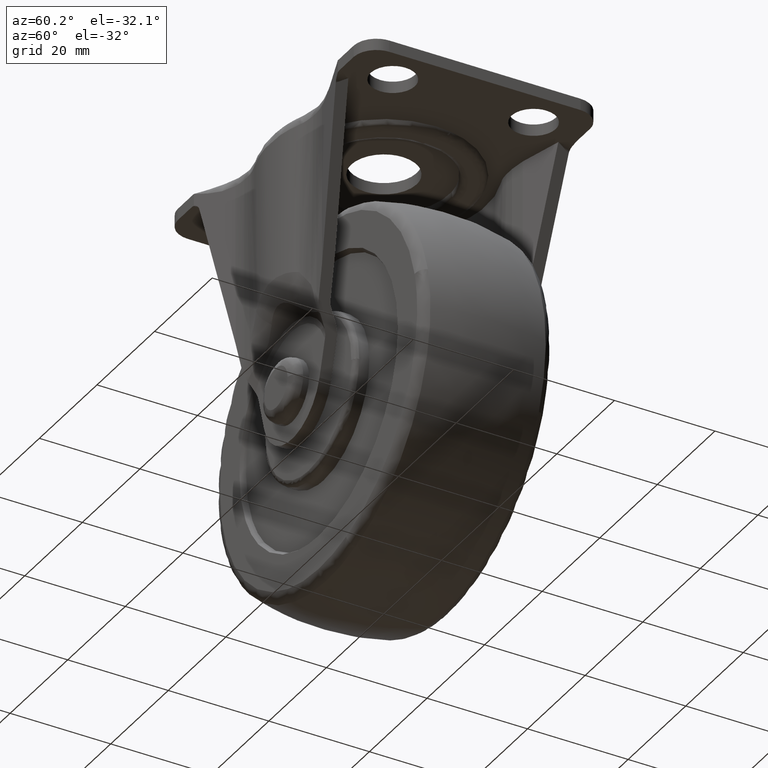
[diagram: clean part render]
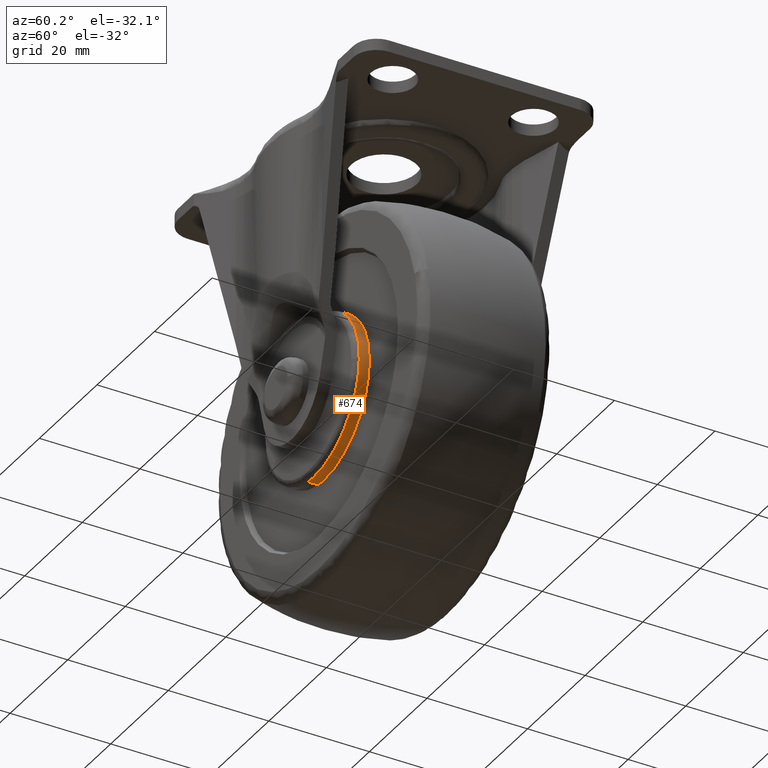
[diagram: same view with one face highlighted and labeled with its STEP entity id]
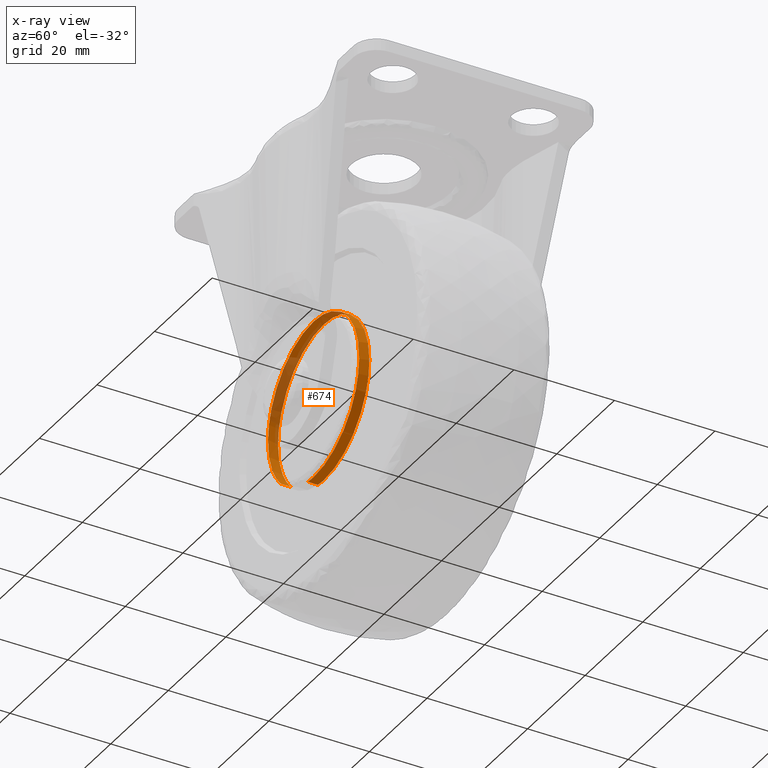
[diagram: x-ray of the same camera — body ghosted, the highlighted face saturated]
A machine part, auxiliary view. The second image highlights one B-rep face of the part: STEP entity #674.
The next image is the same camera in x-ray: the body ghosted, the highlighted face saturated — about 26% of this face is hidden behind the body in this view.
In plain terms, the highlighted face is a freeform B-spline surface patch.
Its self-contained STEP definition (entity closure, byte-faithful):
#487=CARTESIAN_POINT('',(-1.984105715283009,-11.950000017438946,-15.725322289561667));
#488=CARTESIAN_POINT('',(5.464531146720547,-11.950000017438947,-16.665136602860606));
#489=CARTESIAN_POINT('',(10.910418648036851,-11.950000017438949,-11.497182329796010));
#490=CARTESIAN_POINT('',(22.407600977832860,-11.950000017438947,-0.586763681759164));
#491=CARTESIAN_POINT('',(11.497182329796010,-11.950000017438949,10.910418648036851));
#492=CARTESIAN_POINT('',(0.586763681759166,-11.950000017438947,22.407600977832860));
#493=CARTESIAN_POINT('',(-10.910418648036851,-11.950000017438949,11.497182329796020));
#494=CARTESIAN_POINT('',(-22.407600977832860,-11.950000017438947,0.586763681759168));
#495=CARTESIAN_POINT('',(-11.497182329796010,-11.950000017438949,-10.910418648036851));
#496=CARTESIAN_POINT('',(-1.984105715283009,-14.051249284567133,-15.725322289561667));
#497=CARTESIAN_POINT('',(5.464531146720547,-14.051249284567140,-16.665136602860606));
#498=CARTESIAN_POINT('',(10.910418648036851,-14.051249284567140,-11.497182329796010));
#499=CARTESIAN_POINT('',(22.407600977832860,-14.051249284567135,-0.586763681759164));
#500=CARTESIAN_POINT('',(11.497182329796010,-14.051249284567140,10.910418648036851));
#501=CARTESIAN_POINT('',(0.586763681759166,-14.051249284567135,22.407600977832860));
#502=CARTESIAN_POINT('',(-10.910418648036851,-14.051249284567140,11.497182329796020));
#503=CARTESIAN_POINT('',(-22.407600977832860,-14.051249284567135,0.586763681759168));
#504=CARTESIAN_POINT('',(-11.497182329796010,-14.051249284567140,-10.910418648036851));
#512=(BOUNDED_SURFACE()B_SPLINE_SURFACE(2,1,((#487,#496),(#488,#497),(#489,#498),(#490,#499),(#491,#500),(#492,#501),(#493,#502),(#494,#503),(#495,#504)),.UNSPECIFIED.,.F.,.F.,.U.)B_SPLINE_SURFACE_WITH_KNOTS((3,2,2,2,3),(2,2),(0.0,14.706236462817600,40.967373003563317,67.228509544309048,93.489646085054758),(0.0,2.101249267128188),.UNSPECIFIED.)GEOMETRIC_REPRESENTATION_ITEM()RATIONAL_B_SPLINE_SURFACE(((0.855662221768731,0.855662221768731),(0.835979797464467,0.835979797464467),(1.0,1.0),(0.707106781186548,0.707106781186548),(1.0,1.0),(0.707106781186548,0.707106781186548),(1.0,1.0),(0.707106781186548,0.707106781186548),(1.0,1.0)))REPRESENTATION_ITEM('')SURFACE());
#513=CARTESIAN_POINT('',(-1.984105815657364,-12.000000000000011,-15.725322305418061));
#514=VERTEX_POINT('',#513);
#515=CARTESIAN_POINT('',(0.0,-12.0,-15.849997999999999));
#516=VERTEX_POINT('',#515);
#517=CARTESIAN_POINT('',(-1.984105815657364,-12.000000000000011,-15.725322305418061));
#518=CARTESIAN_POINT('',(-1.326214247187355,-12.000000000000011,-15.808341750629390));
#519=CARTESIAN_POINT('',(-0.663109379347845,-12.0,-15.850013601657279));
#520=CARTESIAN_POINT('',(0.0,-12.0,-15.849997999999999));
#521=B_SPLINE_CURVE_WITH_KNOTS('',3,(#517,#518,#519,#520),.UNSPECIFIED.,.F.,.U.,(4,4),(7.272303E-010,1.989329648419752),.UNSPECIFIED.);
#522=EDGE_CURVE('',#514,#516,#521,.T.);
#523=ORIENTED_EDGE('',*,*,#522,.T.);
#524=CARTESIAN_POINT('',(15.849997999999930,-12.0,0.000001465793642));
#525=VERTEX_POINT('',#524);
#526=CARTESIAN_POINT('',(0.0,-12.0,-15.849997999999999));
#527=CARTESIAN_POINT('',(1.426461432604344,-11.999999999999959,-15.850538316784069));
#528=CARTESIAN_POINT('',(3.500932572166663,-12.000000000000080,-15.567945004928321));
#529=CARTESIAN_POINT('',(6.019340744264031,-11.999999999999959,-14.701395573085581));
#530=CARTESIAN_POINT('',(8.009395368322428,-12.000000000000011,-13.745284830118200));
#531=CARTESIAN_POINT('',(10.058189884144760,-12.000000000000020,-12.358127347131660));
#532=CARTESIAN_POINT('',(11.874612234713810,-11.999999999999989,-10.585620349137050));
#533=CARTESIAN_POINT('',(13.251222477362180,-12.000000000000011,-8.776234430072744));
#534=CARTESIAN_POINT('',(14.416886309820120,-11.999999999999989,-6.747869433438803));
#535=CARTESIAN_POINT('',(15.523864005684160,-12.000000000000011,-3.825113433784124));
#536=CARTESIAN_POINT('',(15.850493601524899,-12.0,-1.426443438207365));
#537=CARTESIAN_POINT('',(15.849997999999930,-12.0,0.000001465793642));
#538=B_SPLINE_CURVE_WITH_KNOTS('',3,(#526,#527,#528,#529,#530,#531,#532,#533,#534,#535,#536,#537),.UNSPECIFIED.,.F.,.U.,(4,1,1,1,1,1,1,1,1,4),(0.000000041979693,4.279198799130732,6.224319044318424,7.974923875567782,10.892603042152240,13.615655365844891,15.560780410035470,17.700396983301768,20.618073616757069,24.897275683109321),.UNSPECIFIED.);
#539=EDGE_CURVE('',#516,#525,#538,.T.);
#540=ORIENTED_EDGE('',*,*,#539,.T.);
#541=CARTESIAN_POINT('',(0.0,-12.0,15.849997999999999));
#542=VERTEX_POINT('',#541);
#543=CARTESIAN_POINT('',(15.849997999999930,-12.0,0.000001465793642));
#544=CARTESIAN_POINT('',(15.850301921562510,-11.999999999999989,1.296734564732039));
#545=CARTESIAN_POINT('',(15.561963997480790,-12.000000000000011,3.630729560814940));
#546=CARTESIAN_POINT('',(14.574192734702550,-11.999999999999989,6.391012637649445));
#547=CARTESIAN_POINT('',(13.397605458487570,-12.0,8.560015198626347));
#548=CARTESIAN_POINT('',(12.168048322812270,-11.999999999999989,10.239353460587170));
#549=CARTESIAN_POINT('',(10.489498507800910,-12.0,11.959557511672010));
#550=CARTESIAN_POINT('',(8.262698095362419,-12.000000000000069,13.654194116685080));
#551=CARTESIAN_POINT('',(5.673805845534244,-11.999999999999821,14.898065429050250));
#552=CARTESIAN_POINT('',(2.787892614726281,-12.000000000000330,15.677468909148370));
#553=CARTESIAN_POINT('',(1.037384388674452,-11.999999999999741,15.850127881965300));
#554=CARTESIAN_POINT('',(0.0,-12.0,15.849997999999999));
#555=B_SPLINE_CURVE_WITH_KNOTS('',3,(#543,#544,#545,#546,#547,#548,#549,#550,#551,#552,#553,#554),.UNSPECIFIED.,.F.,.U.,(4,1,1,1,1,1,1,1,1,4),(0.000000042498129,3.890178484874348,7.002366756498855,8.752949817820275,11.281617093805931,13.226644228601410,15.949814399063140,19.645515253740172,21.785131685158770,24.897274030807850),.UNSPECIFIED.);
#556=EDGE_CURVE('',#525,#542,#555,.T.);
#557=ORIENTED_EDGE('',*,*,#556,.T.);
#558=CARTESIAN_POINT('',(-15.849997999999930,-12.0,-0.000001465793372));
#559=VERTEX_POINT('',#558);
#560=CARTESIAN_POINT('',(0.0,-12.0,15.849997999999999));
#561=CARTESIAN_POINT('',(-1.037385003971146,-11.999999999999980,15.850109697868350));
#562=CARTESIAN_POINT('',(-3.112097904054919,-12.000000000000020,15.645600104357779));
#563=CARTESIAN_POINT('',(-6.229399538564491,-12.000000000000020,14.700193508128320));
#564=CARTESIAN_POINT('',(-8.858129110656730,-11.999999999999931,13.253178717180800));
#565=CARTESIAN_POINT('',(-11.270436001234030,-12.000000000000179,11.273500153207481));
#566=CARTESIAN_POINT('',(-13.076402316673320,-11.999999999999689,9.127278617753468));
#567=CARTESIAN_POINT('',(-14.312966125387771,-12.000000000000400,6.912386358400955));
#568=CARTESIAN_POINT('',(-15.084294979107771,-11.999999999999471,4.983631097791220));
#569=CARTESIAN_POINT('',(-15.677487488589531,-12.000000000000499,2.787903645543582));
#570=CARTESIAN_POINT('',(-15.850143569760510,-11.999999999999730,1.037383286247458));
#571=CARTESIAN_POINT('',(-15.849997999999930,-12.0,-0.000001465793372));
#572=B_SPLINE_CURVE_WITH_KNOTS('',3,(#560,#561,#562,#563,#564,#565,#566,#567,#568,#569,#570,#571),.UNSPECIFIED.,.F.,.U.,(4,1,1,1,1,1,1,1,1,4),(0.000000041977454,3.112156138962007,6.224319044317216,9.725531527627103,12.059634547223689,15.560780410035189,18.089422612575930,19.645516557709811,21.785133131381151,24.897275683109171),.UNSPECIFIED.);
#573=EDGE_CURVE('',#542,#559,#572,.T.);
#574=ORIENTED_EDGE('',*,*,#573,.T.);
#575=CARTESIAN_POINT('',(-11.497182531193239,-12.000000000000011,-10.910418967432911));
#576=VERTEX_POINT('',#575);
#577=CARTESIAN_POINT('',(-15.849997999999930,-12.0,-0.000001465793372));
#578=CARTESIAN_POINT('',(-15.850526918903860,-12.000000000000041,-1.441603185139788));
#579=CARTESIAN_POINT('',(-15.548550716292580,-11.999999999999980,-3.634893695818513));
#580=CARTESIAN_POINT('',(-14.467680235121280,-12.000000000000020,-6.651701222856391));
#581=CARTESIAN_POINT('',(-13.207350973109110,-12.000000000000020,-8.904334016816669));
#582=CARTESIAN_POINT('',(-12.058060746208760,-12.000000000000020,-10.319428381911591));
#583=CARTESIAN_POINT('',(-11.497182531193239,-12.000000000000011,-10.910418967432911));
#584=B_SPLINE_CURVE_WITH_KNOTS('',3,(#577,#578,#579,#580,#581,#582,#583),.UNSPECIFIED.,.F.,.U.,(4,1,1,1,4),(0.000000019692692,4.324610373985438,6.580896114241712,9.589340449232804,12.033676664035900),.UNSPECIFIED.);
#585=EDGE_CURVE('',#559,#576,#584,.T.);
#586=ORIENTED_EDGE('',*,*,#585,.T.);
#587=CARTESIAN_POINT('',(-11.497182263614430,-13.999999301877150,-10.910418717777500));
#588=VERTEX_POINT('',#587);
#589=CARTESIAN_POINT('',(-11.497182531193239,-12.000000000000011,-10.910418967432911));
#590=CARTESIAN_POINT('',(-11.497182263614430,-13.999999301877150,-10.910418717777500));
#591=QUASI_UNIFORM_CURVE('',1,(#589,#590),.UNSPECIFIED.,.F.,.U.);
#592=EDGE_CURVE('',#576,#588,#591,.T.);
#593=ORIENTED_EDGE('',*,*,#592,.T.);
#594=CARTESIAN_POINT('',(-15.844992400769810,-13.999999302442060,0.398311962590949));
#595=VERTEX_POINT('',#594);
#596=CARTESIAN_POINT('',(-15.844992400769810,-13.999999302442060,0.398311962590949));
#597=CARTESIAN_POINT('',(-15.866193338027751,-13.999999302391471,-0.443169317403675));
#598=CARTESIAN_POINT('',(-15.770543278609990,-13.999999302289689,-2.194362029019258));
#599=CARTESIAN_POINT('',(-15.160875643646319,-13.999999302142550,-4.921546597494865));
#600=CARTESIAN_POINT('',(-13.857147432268640,-13.999999301993380,-7.972863854143797));
#601=CARTESIAN_POINT('',(-12.433457195380170,-13.999999301912631,-9.924317341504958));
#602=CARTESIAN_POINT('',(-11.497182263614430,-13.999999301877150,-10.910418717777500));
#603=B_SPLINE_CURVE_WITH_KNOTS('',3,(#596,#597,#598,#599,#600,#601,#602),.UNSPECIFIED.,.F.,.U.,(4,1,1,1,4),(0.000000016546148,2.525254272361481,5.244785785201518,8.352767322923775,12.432039133506560),.UNSPECIFIED.);
#604=EDGE_CURVE('',#595,#588,#603,.T.);
#605=ORIENTED_EDGE('',*,*,#604,.F.);
#606=CARTESIAN_POINT('',(0.0,-13.999999301868399,15.849997999999751));
#607=VERTEX_POINT('',#606);
#608=CARTESIAN_POINT('',(0.0,-13.999999301868399,15.849997999999751));
#609=CARTESIAN_POINT('',(-1.212202853564742,-13.999999301868391,15.850279831328780));
#610=CARTESIAN_POINT('',(-2.934637074063771,-13.999999301875789,15.651377372723431));
#611=CARTESIAN_POINT('',(-5.330211822454101,-13.999999301901140,14.968286776097489));
#612=CARTESIAN_POINT('',(-7.688628769394002,-13.999999301937940,13.975788728336070));
#613=CARTESIAN_POINT('',(-10.142122624458469,-13.999999301999271,12.326835772370970));
#614=CARTESIAN_POINT('',(-12.289860634253250,-13.999999302080671,10.128498820976530));
#615=CARTESIAN_POINT('',(-13.891653879252400,-13.999999302167030,7.811000833028585));
#616=CARTESIAN_POINT('',(-14.892870623011831,-13.999999302249449,5.590603460065354));
#617=CARTESIAN_POINT('',(-15.613327958707270,-13.999999302342340,3.072818333412415));
#618=CARTESIAN_POINT('',(-15.817896847648131,-13.999999302402291,1.482563313115707));
#619=CARTESIAN_POINT('',(-15.844992400769810,-13.999999302442060,0.398311962590949));
#620=B_SPLINE_CURVE_WITH_KNOTS('',3,(#608,#609,#610,#611,#612,#613,#614,#615,#616,#617,#618,#619),.UNSPECIFIED.,.F.,.U.,(4,1,1,1,1,1,1,1,1,4),(0.000000051680196,3.636530705866061,5.167733537046676,7.464522451805035,11.292512420964769,13.971990561242629,16.651589522712641,19.713975870925129,21.245171719881650,24.498913579753282),.UNSPECIFIED.);
#621=EDGE_CURVE('',#607,#595,#620,.T.);
#622=ORIENTED_EDGE('',*,*,#621,.F.);
#623=CARTESIAN_POINT('',(15.844992400769810,-13.999999302442060,-0.398311962590946));
#624=VERTEX_POINT('',#623);
#625=CARTESIAN_POINT('',(15.844992400769810,-13.999999302442060,-0.398311962590946));
#626=CARTESIAN_POINT('',(15.864877748551530,-13.999999302394560,0.391904842030030));
#627=CARTESIAN_POINT('',(15.776352881990810,-13.999999302290780,2.173289714634836));
#628=CARTESIAN_POINT('',(15.204004131985140,-13.999999302151259,4.757127056561614));
#629=CARTESIAN_POINT('',(14.167370329323830,-13.999999302028030,7.260754516144180));
#630=CARTESIAN_POINT('',(12.983940471302420,-13.999999301943770,9.170937813434923));
#631=CARTESIAN_POINT('',(11.564210445351190,-13.999999301875730,10.906768907284400));
#632=CARTESIAN_POINT('',(9.878597938456005,-13.999999301823109,12.490838094597390));
#633=CARTESIAN_POINT('',(7.399484398700672,-13.999999301787110,14.136613563728300));
#634=CARTESIAN_POINT('',(4.083966064971953,-13.999999301788639,15.486038268260289));
#635=CARTESIAN_POINT('',(1.449256558305331,-13.999999301832450,15.850510749514539));
#636=CARTESIAN_POINT('',(0.0,-13.999999301868399,15.849997999999751));
#637=B_SPLINE_CURVE_WITH_KNOTS('',3,(#625,#626,#627,#628,#629,#630,#631,#632,#633,#634,#635,#636),.UNSPECIFIED.,.F.,.U.,(4,1,1,1,1,1,1,1,1,4),(0.000000031264769,2.371424695094781,5.335788510950280,7.904891304950137,10.474013245619441,12.054965668100470,14.623998807080930,17.390747646743819,20.947955610728929,25.295636374068192),.UNSPECIFIED.);
#638=EDGE_CURVE('',#624,#607,#637,.T.);
#639=ORIENTED_EDGE('',*,*,#638,.F.);
#640=CARTESIAN_POINT('',(0.0,-13.999999301868399,-15.849997999999751));
#641=VERTEX_POINT('',#640);
#642=CARTESIAN_POINT('',(0.0,-13.999999301868399,-15.849997999999751));
#643=CARTESIAN_POINT('',(0.956981116389593,-13.999999301868421,-15.850091895174470));
#644=CARTESIAN_POINT('',(2.679516463404818,-13.999999301874180,-15.693505964710440));
#645=CARTESIAN_POINT('',(5.094434927793335,-13.999999301897491,-15.067654546437410));
#646=CARTESIAN_POINT('',(7.039928995043609,-13.999999301927810,-14.248530409030010));
#647=CARTESIAN_POINT('',(9.030024107340418,-13.999999301970790,-13.095138377488240));
#648=CARTESIAN_POINT('',(10.736963199145270,-13.999999302020811,-11.742294162498650));
#649=CARTESIAN_POINT('',(12.348305454540069,-13.999999302085170,-10.011348524158681));
#650=CARTESIAN_POINT('',(13.754484473060209,-13.999999302158740,-8.028634757706085));
#651=CARTESIAN_POINT('',(14.809017341827991,-13.999999302240241,-5.833060854690353));
#652=CARTESIAN_POINT('',(15.596963917602579,-13.999999302338020,-3.200044110100584));
#653=CARTESIAN_POINT('',(15.817899818906090,-13.999999302402040,-1.482562280922845));
#654=CARTESIAN_POINT('',(15.844992400769810,-13.999999302442060,-0.398311962590946));
#655=B_SPLINE_CURVE_WITH_KNOTS('',3,(#642,#643,#644,#645,#646,#647,#648,#649,#650,#651,#652,#653,#654),.UNSPECIFIED.,.F.,.U.,(4,1,1,1,1,1,1,1,1,1,4),(0.000000051680150,2.870944762184468,5.167733537046523,7.464522451804829,9.187100625382758,12.058071410470260,13.971990561242730,16.268786620944180,19.331176430256431,21.245171719881679,24.498913579753282),.UNSPECIFIED.);
#656=EDGE_CURVE('',#641,#624,#655,.T.);
#657=ORIENTED_EDGE('',*,*,#656,.F.);
#658=CARTESIAN_POINT('',(-1.984105811055312,-13.999999301826620,-15.725322277477710));
#659=VERTEX_POINT('',#658);
#660=CARTESIAN_POINT('',(-1.984105811055312,-13.999999301826620,-15.725322277477710));
#661=CARTESIAN_POINT('',(-1.326215600546883,-13.999999301838001,-15.808345704858750));
#662=CARTESIAN_POINT('',(-0.663108191861618,-13.999999301851950,-15.850009720655571));
#663=CARTESIAN_POINT('',(0.0,-13.999999301868399,-15.849997999999751));
#664=B_SPLINE_CURVE_WITH_KNOTS('',3,(#660,#661,#662,#663),.UNSPECIFIED.,.F.,.U.,(4,4),(7.272658E-010,1.989329645575700),.UNSPECIFIED.);
#665=EDGE_CURVE('',#659,#641,#664,.T.);
#666=ORIENTED_EDGE('',*,*,#665,.F.);
#667=CARTESIAN_POINT('',(-1.984105815657364,-12.000000000000011,-15.725322305418061));
#668=CARTESIAN_POINT('',(-1.984105811055312,-13.999999301826620,-15.725322277477710));
#669=QUASI_UNIFORM_CURVE('',1,(#667,#668),.UNSPECIFIED.,.F.,.U.);
#670=EDGE_CURVE('',#514,#659,#669,.T.);
#671=ORIENTED_EDGE('',*,*,#670,.F.);
#672=EDGE_LOOP('',(#523,#540,#557,#574,#586,#593,#605,#622,#639,#657,#666,#671));
#673=FACE_OUTER_BOUND('',#672,.T.);
#674=ADVANCED_FACE('',(#673),#512,.T.);